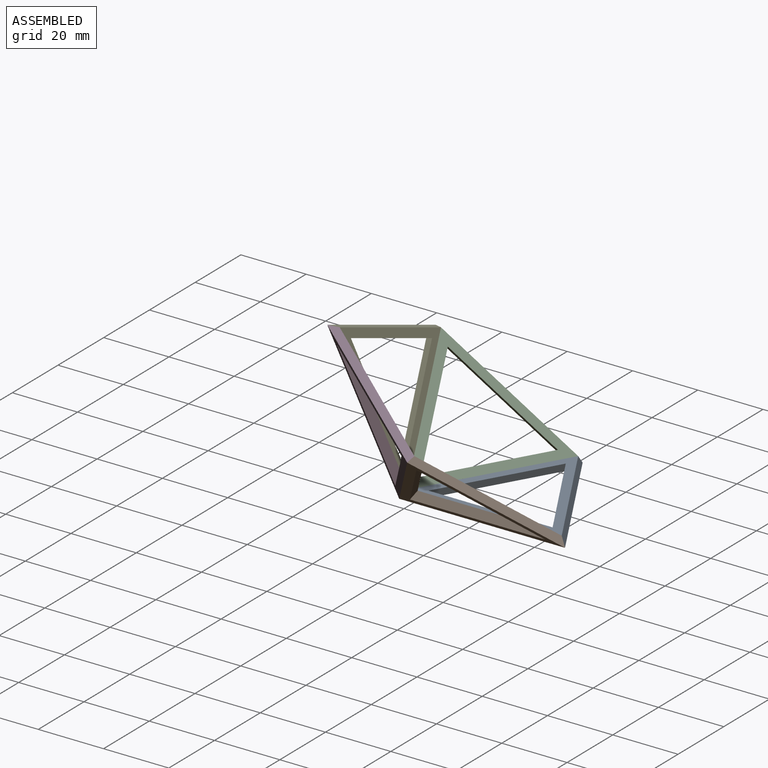
[diagram: assembled view]
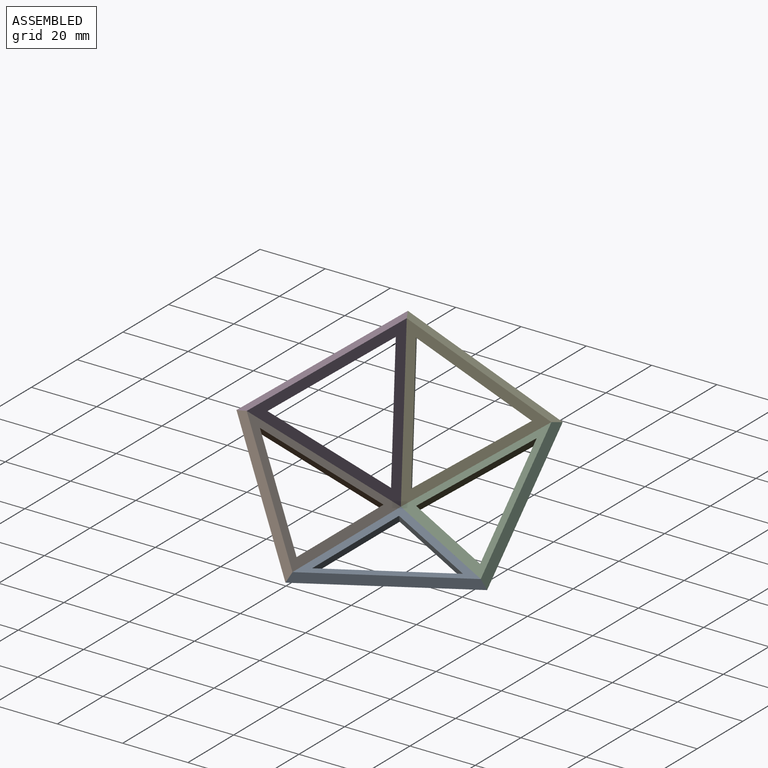
[diagram: assembled view, second angle]
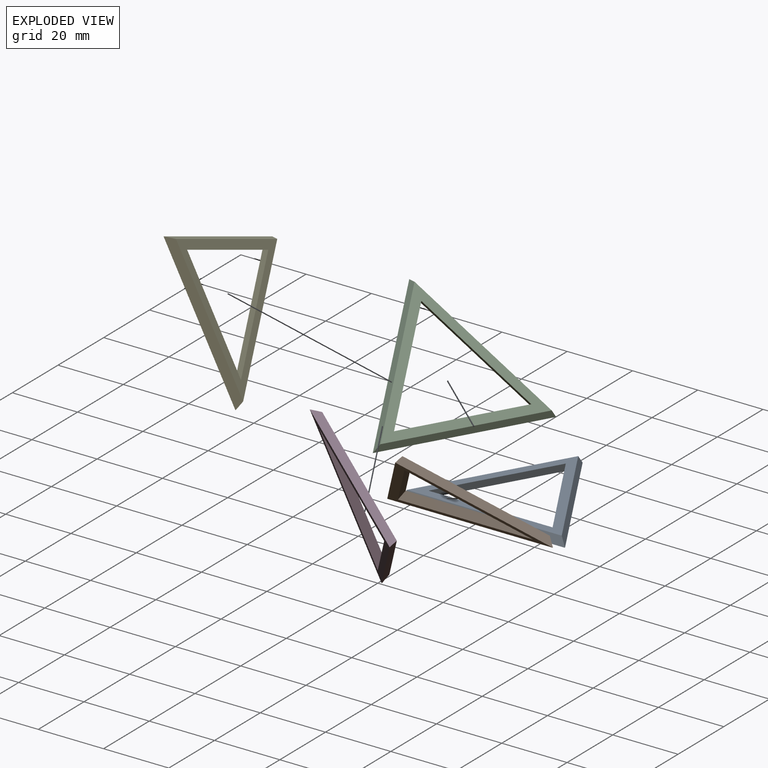
[diagram: exploded view]
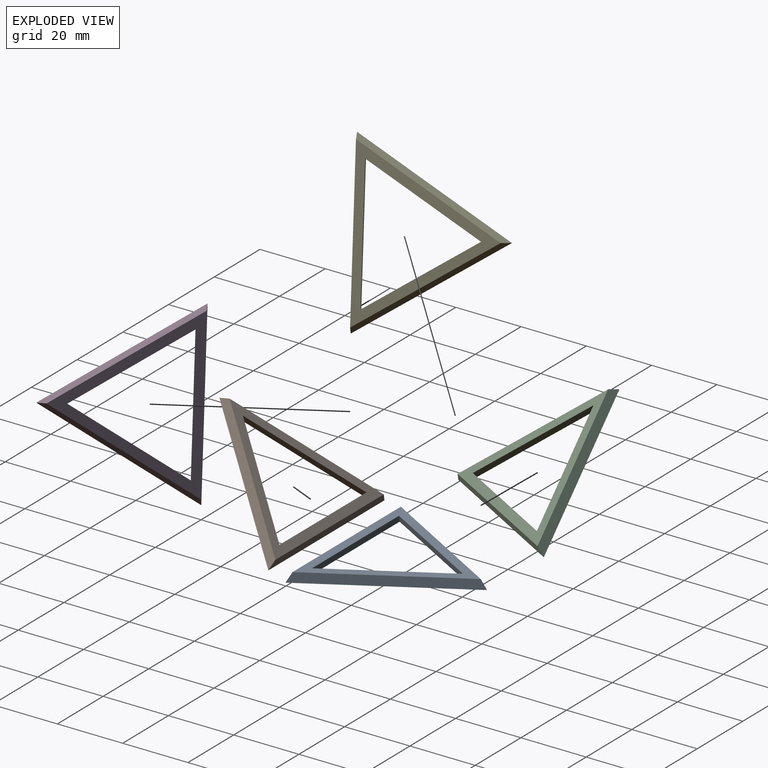
[diagram: exploded view, second angle]
ASSEMBLY  parts=5 mates=4
PART A: 8 faces, bbox 50.8x44x2.5 mm
  f0: plane 50.8x43.99mm, normal (0,0,-1), area 376mm2, adj f1,f2,f3,f4,f5,f6
  f1: plane 50.8x2.54mm, normal (0,-0.93,0.36), area 133.6mm2, adj f0,f2,f3,f7
  f2: plane 43.99x25.4mm, normal (0.81,0.47,0.36), area 133.6mm2, adj f0,f1,f3,f7
  f3: plane 43.99x25.4mm, normal (-0.81,0.47,0.36), area 133.6mm2, adj f0,f1,f2,f7
  f4: plane 41.38x2.54mm, normal (0,0.93,-0.36), area 107.9mm2, adj f0,f5,f6,f7
  f5: plane 35.84x20.69mm, normal (-0.81,-0.47,-0.36), area 107.9mm2, adj f0,f4,f6,f7
  f6: plane 35.84x20.69mm, normal (0.81,-0.47,-0.36), area 107.9mm2, adj f0,f4,f5,f7
  f7: plane 47.44x41.08mm, normal (0,0,1), area 348.5mm2, adj f1,f2,f3,f4,f5,f6
PART B: same geometry as A
PART C: same geometry as A
PART D: same geometry as A
PART E: same geometry as A
PLACE A t=(-0.26,-7.87,-11.5)mm fixed
PLACE B rot(axis=(0,0.36,0.93),180deg) t=(-0.26,-33.47,-1.72)mm
PLACE C rot(axis=(0,0.61,-0.79),72deg) t=(-22.43,4.93,-1.72)mm
PLACE D rot(axis=(0,0.67,0.75),120deg) t=(-22.43,-36.49,14.1)mm
PLACE E rot(axis=(0.53,0.3,0.79),144deg) t=(-36.13,-12.76,14.1)mm
MATE fastened C.f2 <-> A.f3  axis (0.81,-0.47,-0.36) through (-12.55,-0.78,-10.24)mm
MATE fastened E.f1 <-> C.f1  axis (0.5,0.65,-0.58) through (-32.43,-3.49,3.94)mm
MATE fastened A.f1 <-> B.f1  axis (0,-0.93,0.36) through (-0.26,-22.06,-10.24)mm
MATE fastened D.f2 <-> E.f3  axis (-0.5,0.87,0) through (-32.43,-26.44,12.71)mm
